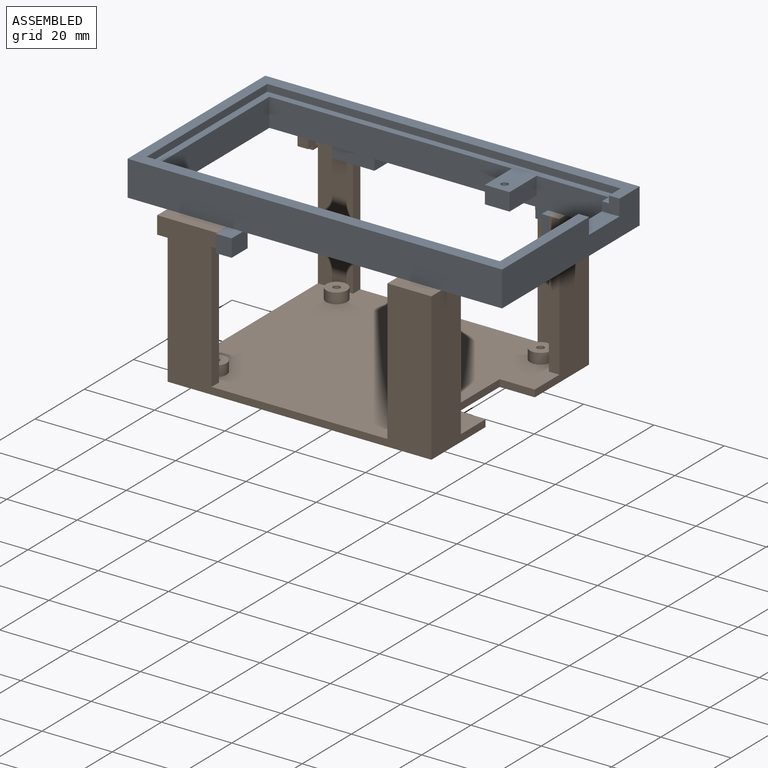
[diagram: assembled view]
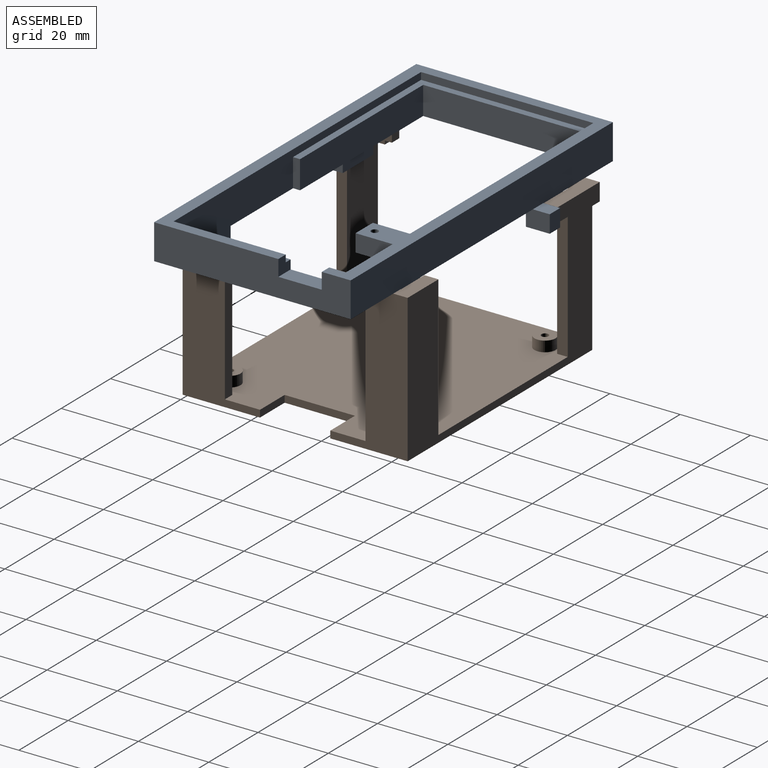
[diagram: assembled view, second angle]
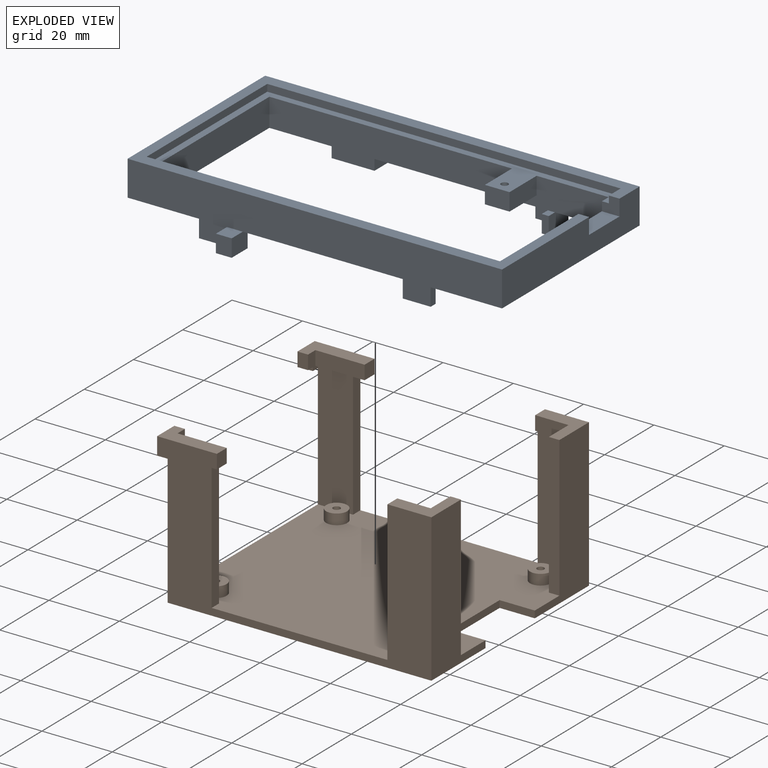
[diagram: exploded view]
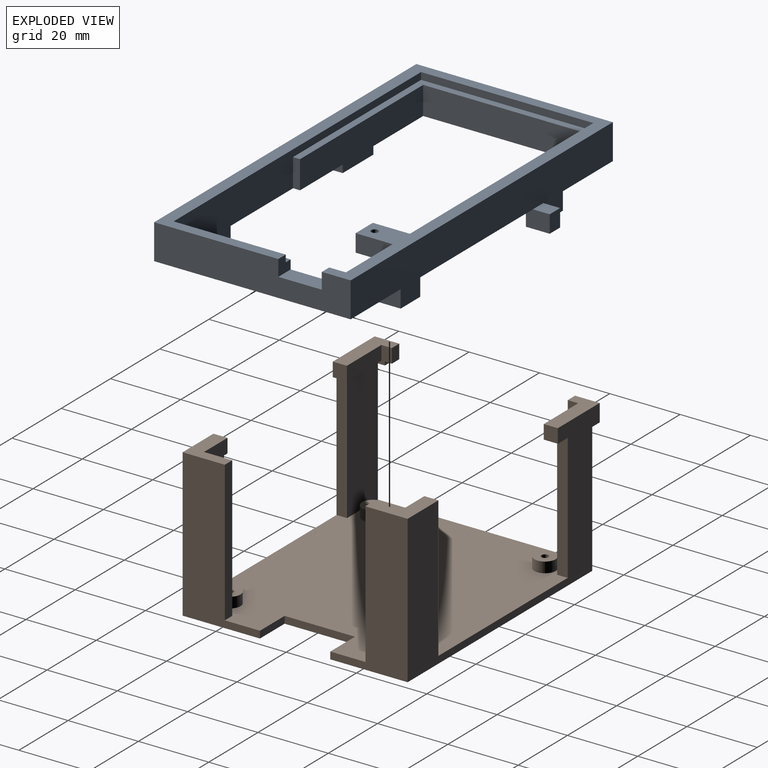
[diagram: exploded view, second angle]
ASSEMBLY  parts=2 mates=3
PART A: 52 faces, bbox 106.5x65.2x15 mm
  f0: plane 4.75x2mm, normal (-1,0,0), area 9.5mm2, adj f1,f32,f38,f51
  f1: plane 100.5x49mm, normal (0,0,1), area 474.4mm2, adj f0,f2,f3,f32,f34,f37,f40,f42
  f2: plane 35x8mm, normal (-1,0,0), area 248mm2, adj f1,f3,f19,f39,f41,f49,f50,f51
  f3: plane 96.5x8mm, normal (0,-1,0), area 737mm2, adj f1,f2,f12,f19,f42,f44,f45,f48
  f4: plane 12.18x5mm, normal (0,-1,0), area 60.9mm2, adj f5,f9,f11,f19
  f5: plane 6.79x5mm, normal (1,0,0), area 33.9mm2, adj f4,f6,f10,f11,f19
  f6: plane 5x4.23mm, normal (0,1,0), area 21.2mm2, adj f5,f7,f10,f11
  f7: plane 5x4.79mm, normal (-1,0,0), area 23.9mm2, adj f6,f8,f10,f11
  f8: plane 106.5x15mm, normal (0,1,0), area 1144.5mm2, adj f7,f9,f10,f11,f13,f17,f18,f19
  f9: plane 5x2mm, normal (-1,0,0), area 10mm2, adj f4,f8,f11,f19
  f10: plane 4.79x4.23mm, normal (0,0,1), area 20.3mm2, adj f5,f6,f7,f8
  f11: plane 12.18x6.79mm, normal (0,0,-1), area 44.6mm2, adj f4,f5,f6,f7,f8,f9
  f12: plane 2.5x2mm, normal (0,0,1), area 5mm2, adj f3,f15,f16,f17
  f13: plane 5x2mm, normal (-1,0,0), area 10mm2, adj f8,f14,f18,f19
  f14: plane 5.95x5mm, normal (0,-1,0), area 29.7mm2, adj f13,f15,f18,f19
  f15: plane 5.95x5mm, normal (-1,0,0), area 29.8mm2, adj f12,f14,f16,f18,f19
  f16: plane 5x2mm, normal (0,-1,0), area 10mm2, adj f12,f15,f17,f18
  f17: plane 7.95x5mm, normal (1,0,0), area 39.8mm2, adj f8,f12,f16,f18,f19
  f18: plane 7.95x7.95mm, normal (0,0,-1), area 27.8mm2, adj f8,f13,f14,f15,f16,f17
  f19: plane 106.5x55.9mm, normal (0,0,-1), area 1405.9mm2, adj f2,f3,f4,f5,f8,f9,f13,f14
  f20: plane 5x2mm, normal (1,0,0), area 10mm2, adj f19,f21,f23,f24
  f21: plane 7.95x5mm, normal (0,1,0), area 39.8mm2, adj f19,f20,f22,f24
  f22: plane 5x2mm, normal (-1,0,0), area 10mm2, adj f19,f21,f23,f24
  f23: plane 106.5x15mm, normal (0,-1,0), area 1144.5mm2, adj f19,f20,f22,f24,f25,f26,f27,f31
  f24: plane 7.95x2mm, normal (0,0,-1), area 15.9mm2, adj f20,f21,f22,f23
  f25: plane 4.5x4.49mm, normal (0,0,1), area 20.2mm2, adj f23,f27,f28,f29
  f26: plane 5x2mm, normal (-1,0,0), area 10mm2, adj f19,f23,f30,f31
  f27: plane 5x4.49mm, normal (-1,0,0), area 22.5mm2, adj f23,f25,f28,f31
  f28: plane 5x4.5mm, normal (0,-1,0), area 22.5mm2, adj f25,f27,f29,f31
  f29: plane 6.49x5mm, normal (1,0,0), area 32.5mm2, adj f19,f25,f28,f30,f31
  f30: plane 12.45x5mm, normal (0,1,0), area 62.3mm2, adj f19,f26,f29,f31
  f31: plane 12.45x6.49mm, normal (0,0,-1), area 45.1mm2, adj f23,f26,f27,f28,f29,f30
  f32: plane 100.5x2mm, normal (0,-1,0), area 201mm2, adj f0,f1,f37,f38
  f33: plane 31.88x10mm, normal (-1,0,0), area 159.8mm2, adj f19,f34,f38,f39,f41,f49
  f34: plane 100.5x10mm, normal (0,1,0), area 589mm2, adj f1,f19,f33,f37,f38,f40
  f35: plane 55.9x10mm, normal (1,0,0), area 502.3mm2, adj f8,f19,f23,f38,f49,f50,f51
  f36: plane 55.9x10mm, normal (-1,0,0), area 559mm2, adj f8,f19,f23,f38
  f37: plane 49x2mm, normal (1,0,0), area 98mm2, adj f1,f32,f34,f38
  f38: plane 106.5x55.9mm, normal (0,0,1), area 991.7mm2, adj f0,f8,f23,f32,f33,f34,f35,f36
  f39: plane 19.88x2mm, normal (0,0,1), area 39.8mm2, adj f2,f33,f41,f49
  f40: plane 8x2mm, normal (1,0,0), area 16mm2, adj f1,f19,f34,f43
  f41: plane 8x2mm, normal (0,-1,0), area 16mm2, adj f2,f19,f33,f39
  f42: plane 45x8mm, normal (1,0,0), area 360mm2, adj f1,f3,f19,f43
  f43: plane 50x8mm, normal (0,1,0), area 400mm2, adj f1,f19,f40,f42
  f44: plane 11x5mm, normal (1,0,0), area 55mm2, adj f1,f3,f47,f48
  f45: plane 11x5mm, normal (-1,0,0), area 55mm2, adj f1,f3,f47,f48
  f46: cylinder r=1mm len=5mm, axis (0,0,1), area 31.4mm2, adj f1,f48
  f47: plane 7x5mm, normal (0,-1,0), area 35mm2, adj f1,f44,f45,f48
  f48: plane 11x7mm, normal (0,0,-1), area 73.9mm2, adj f3,f44,f45,f46,f47
  f49: plane 5x4.59mm, normal (0,1,0), area 18.9mm2, adj f2,f33,f35,f38,f39,f50
  f50: plane 12.37x5mm, normal (0,0,1), area 61.8mm2, adj f2,f35,f49,f51
  f51: plane 5x4.59mm, normal (0,-1,0), area 18.9mm2, adj f0,f1,f2,f35,f38,f50
PART B: 64 faces, bbox 78x64x42 mm
  f0: plane 5x4mm, normal (1,0,0), area 14mm2, adj f2,f39,f47,f49,f58,f59,f62,f63
  f1: plane 36x3mm, normal (1,0,0), area 108mm2, adj f2,f9,f12,f59
  f2: plane 36x12.5mm, normal (0,1,0), area 450mm2, adj f0,f1,f7,f9,f59
  f3: plane 36x3mm, normal (1,0,0), area 108mm2, adj f4,f9,f11,f56
  f4: plane 36x10mm, normal (0,-1,0), area 360mm2, adj f3,f7,f9,f43,f56
  f5: plane 36x9.5mm, normal (0,-1,0), area 342mm2, adj f9,f32,f33,f53
  f6: plane 36x9.5mm, normal (0,1,0), area 342mm2, adj f9,f36,f37,f50
  f7: plane 64x37mm, normal (-1,0,0), area 338mm2, adj f2,f4,f9,f11,f12,f13,f46,f49
  f8: plane 42x22mm, normal (1,0,0), area 524mm2, adj f9,f12,f13,f35,f38,f42
  f9: plane 75x64mm, normal (0,0,1), area 4290.4mm2, adj f1,f2,f3,f4,f5,f6,f7,f8
  f10: plane 42x22mm, normal (1,0,0), area 524mm2, adj f9,f11,f13,f31,f34,f40
  f11: plane 78x42mm, normal (0,1,0), area 1081mm2, adj f3,f7,f9,f10,f13,f30,f32,f34
  f12: plane 78x42mm, normal (0,-1,0), area 1171mm2, adj f1,f7,f8,f9,f13,f37,f38,f39
  f13: plane 75x64mm, normal (0,0,-1), area 4600mm2, adj f7,f8,f10,f11,f12,f40,f41,f42
  f14: cylinder r=1mm len=3mm, axis (0,0,-1), area 18.8mm2, adj f16,f17
  f15: cylinder r=3mm len=6mm, axis (0,0,-1), area 56.5mm2, adj f9,f16
  f16: plane 6x6mm, normal (0,0,1), area 25.1mm2, adj f14,f15
  f17: plane 2x2mm, normal (0,0,1), area 3.1mm2, adj f14
  f18: cylinder r=1mm len=3mm, axis (0,0,-1), area 18.8mm2, adj f20,f21
  f19: cylinder r=3mm len=6mm, axis (0,0,-1), area 56.5mm2, adj f9,f20
  f20: plane 6x6mm, normal (0,0,1), area 25.1mm2, adj f18,f19
  f21: plane 2x2mm, normal (0,0,1), area 3.1mm2, adj f18
  f22: cylinder r=1mm len=3mm, axis (0,0,-1), area 18.8mm2, adj f24,f25
  f23: cylinder r=3mm len=6mm, axis (0,0,-1), area 56.5mm2, adj f9,f24
  f24: plane 6x6mm, normal (0,0,1), area 25.1mm2, adj f22,f23
  f25: plane 2x2mm, normal (0,0,1), area 3.1mm2, adj f22
  f26: cylinder r=1mm len=3mm, axis (0,0,-1), area 18.8mm2, adj f28,f29
  f27: cylinder r=3mm len=6mm, axis (0,0,-1), area 56.5mm2, adj f9,f28
  f28: plane 6x6mm, normal (0,0,1), area 25.1mm2, adj f26,f27
  f29: plane 2x2mm, normal (0,0,1), area 3.1mm2, adj f26
  f30: plane 17x7mm, normal (0,0,1), area 77mm2, adj f11,f43,f45,f54,f55,f60
  f31: plane 40x3mm, normal (0,-1,0), area 120mm2, adj f9,f10,f33,f34
  f32: plane 40x4mm, normal (-1,0,0), area 124mm2, adj f5,f9,f11,f34,f52,f53
  f33: plane 40x9mm, normal (-1,0,0), area 356mm2, adj f5,f9,f31,f34,f52,f53
  f34: plane 12.5x12mm, normal (0,0,1), area 74mm2, adj f10,f11,f31,f32,f33,f52
  f35: plane 40x3mm, normal (0,1,0), area 120mm2, adj f8,f9,f36,f38
  f36: plane 40x9mm, normal (-1,0,0), area 356mm2, adj f6,f9,f35,f38,f50,f51
  f37: plane 40x4mm, normal (-1,0,0), area 124mm2, adj f6,f9,f12,f38,f50,f51
  f38: plane 12.5x12mm, normal (0,0,1), area 74mm2, adj f8,f12,f35,f36,f37,f51
  f39: plane 17x7mm, normal (0,0,1), area 77mm2, adj f0,f12,f48,f57,f58,f62
  f40: plane 10x2mm, normal (0,-1,0), area 20mm2, adj f9,f10,f13,f41
  f41: plane 20x2mm, normal (1,0,0), area 40mm2, adj f9,f13,f40,f42
  f42: plane 10x2mm, normal (0,1,0), area 20mm2, adj f8,f9,f13,f41
  f43: plane 5x4mm, normal (1,0,0), area 14mm2, adj f4,f30,f44,f46,f54,f56,f60,f61
  f44: plane 3x1mm, normal (0,-1,0), area 3mm2, adj f43,f45,f46,f61
  f45: plane 7x5mm, normal (-1,0,0), area 33mm2, adj f11,f30,f44,f46,f60,f61
  f46: plane 5x3mm, normal (0,0,-1), area 15mm2, adj f7,f11,f43,f44,f45
  f47: plane 3x1mm, normal (0,1,0), area 3mm2, adj f0,f48,f49,f63
  f48: plane 7x5mm, normal (-1,0,0), area 33mm2, adj f12,f39,f47,f49,f62,f63
  f49: plane 5x3mm, normal (0,0,-1), area 15mm2, adj f0,f7,f12,f47,f48
  f50: plane 9.5x1mm, normal (0,0,-1), area 9.5mm2, adj f6,f36,f37,f51
  f51: plane 9.5x4mm, normal (0,1,0), area 38mm2, adj f36,f37,f38,f50
  f52: plane 9.5x4mm, normal (0,-1,0), area 38mm2, adj f32,f33,f34,f53
  f53: plane 9.5x1mm, normal (0,0,-1), area 9.5mm2, adj f5,f32,f33,f52
  f54: plane 14x4mm, normal (0,-1,0), area 56mm2, adj f30,f43,f55,f56
  f55: plane 4x4mm, normal (1,0,0), area 16mm2, adj f11,f30,f54,f56
  f56: plane 14x4mm, normal (0,0,-1), area 26mm2, adj f3,f4,f11,f43,f54,f55
  f57: plane 4x4mm, normal (1,0,0), area 16mm2, adj f12,f39,f58,f59
  f58: plane 14x4mm, normal (0,1,0), area 56mm2, adj f0,f39,f57,f59
  f59: plane 14x4mm, normal (0,0,-1), area 18.5mm2, adj f0,f1,f2,f12,f57,f58
  f60: plane 4x3mm, normal (0,-1,0), area 12mm2, adj f30,f43,f45,f61
  f61: plane 3x2mm, normal (0,0,-1), area 6mm2, adj f43,f44,f45,f60
  f62: plane 4x3mm, normal (0,1,0), area 12mm2, adj f0,f39,f48,f63
  f63: plane 3x2mm, normal (0,0,-1), area 6mm2, adj f0,f47,f48,f62
PLACE A t=(4.96,3.16,26.65)mm
PLACE B t=(3.41,3.21,-10.35)mm fixed
MATE planar A.f19 <-> B.f39  axis (0,0,-1) through (2.59,4.92,31.65)mm
MATE planar A.f23 <-> B.f51  axis (0,-1,0) through (33.94,-24.79,26.65)mm
MATE planar A.f20 <-> B.f36  axis (1,0,0) through (37.91,-23.79,29.15)mm
